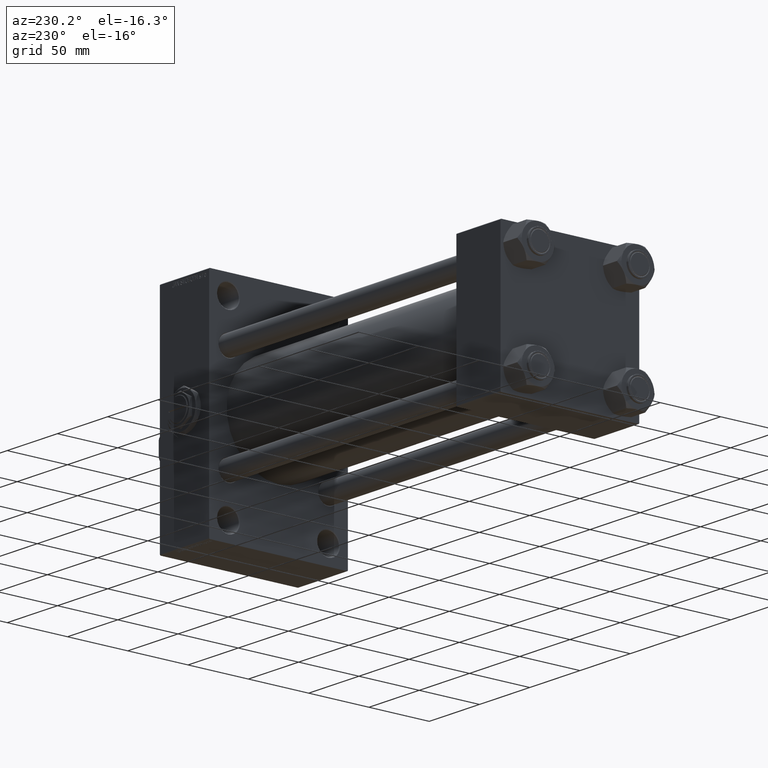
[diagram: clean part render]
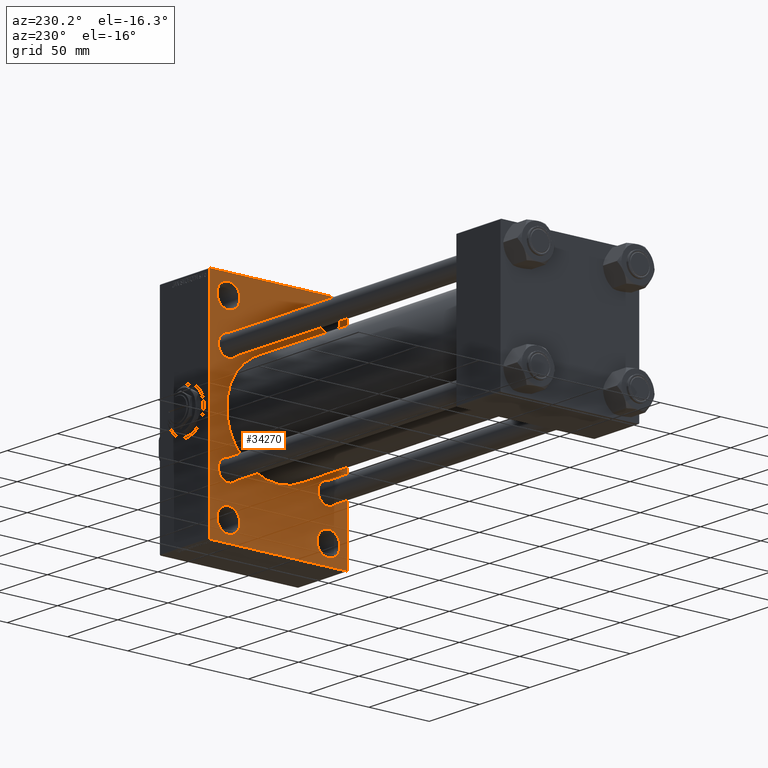
[diagram: same view with one face highlighted and labeled with its STEP entity id]
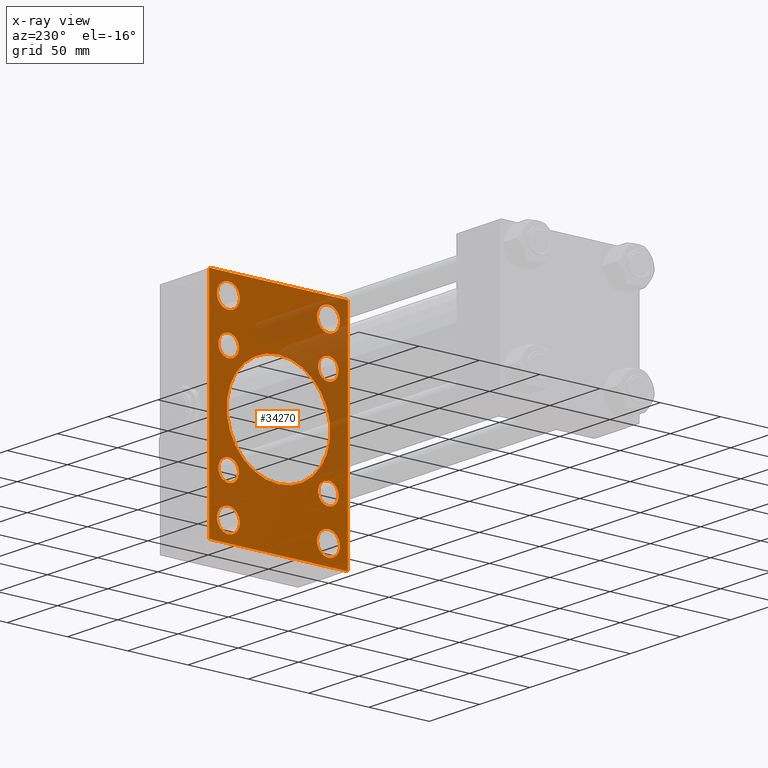
[diagram: x-ray of the same camera — body ghosted, the highlighted face saturated]
A machine part, auxiliary view. The second image highlights one B-rep face of the part: STEP entity #34270.
The next image is the same camera in x-ray: the body ghosted, the highlighted face saturated — about 26% of this face is hidden behind the body in this view.
In plain terms, the highlighted planar face has unit normal (-1, 0, 0).
Its self-contained STEP definition (entity closure, byte-faithful):
#202 = LINE ( 'NONE', #27321, #33629 ) ;
#299 = DIRECTION ( 'NONE',  ( 1.000000000000000000, -0.000000000000000000, 0.000000000000000000 ) ) ;
#974 = CARTESIAN_POINT ( 'NONE',  ( 290.0000000000000000, -2.602085213965210642E-15, 0.000000000000000000 ) ) ;
#1216 = DIRECTION ( 'NONE',  ( 0.000000000000000000, 0.000000000000000000, -1.000000000000000000 ) ) ;
#1561 = ORIENTED_EDGE ( 'NONE', *, *, #21786, .T. ) ;
#1756 = CARTESIAN_POINT ( 'NONE',  ( 290.0000000000000000, 41.50000000000000711, 74.50000000000001421 ) ) ;
#1786 = VERTEX_POINT ( 'NONE', #9973 ) ;
#2034 = LINE ( 'NONE', #6009, #39880 ) ;
#2293 = CIRCLE ( 'NONE', #30932, 9.500000000000008882 ) ;
#2817 = CARTESIAN_POINT ( 'NONE',  ( 290.0000000000000000, -41.49999999999999289, 74.50000000000001421 ) ) ;
#2991 = AXIS2_PLACEMENT_3D ( 'NONE', #17038, #9818, #6324 ) ;
#3307 = FACE_BOUND ( 'NONE', #22557, .T. ) ;
#3384 = DIRECTION ( 'NONE',  ( 1.000000000000000000, -0.000000000000000000, 0.000000000000000000 ) ) ;
#3554 = FACE_BOUND ( 'NONE', #13147, .T. ) ;
#3786 = CARTESIAN_POINT ( 'NONE',  ( 290.0000000000000000, -41.34999999999998721, -32.85000000000000142 ) ) ;
#4050 = FACE_BOUND ( 'NONE', #42019, .T. ) ;
#4152 = AXIS2_PLACEMENT_3D ( 'NONE', #4663, #31030, #8646 ) ;
#4437 = ORIENTED_EDGE ( 'NONE', *, *, #17966, .T. ) ;
#4663 = CARTESIAN_POINT ( 'NONE',  ( 290.0000000000000000, -41.34999999999998721, -41.35000000000000853 ) ) ;
#4712 = CARTESIAN_POINT ( 'NONE',  ( 290.0000000000000000, 41.34999999999999432, 41.35000000000000142 ) ) ;
#5206 = CARTESIAN_POINT ( 'NONE',  ( 290.0000000000000000, -41.34999999999998721, -49.85000000000002274 ) ) ;
#5350 = CARTESIAN_POINT ( 'NONE',  ( 290.0000000000000000, 41.50000000000000711, 65.00000000000000000 ) ) ;
#5513 = DIRECTION ( 'NONE',  ( 1.000000000000000000, 0.000000000000000000, 0.000000000000000000 ) ) ;
#5555 = CARTESIAN_POINT ( 'NONE',  ( 290.0000000000000000, 57.49999999999997868, -89.49999999999995737 ) ) ;
#5763 = VERTEX_POINT ( 'NONE', #16130 ) ;
#5985 = CARTESIAN_POINT ( 'NONE',  ( 290.0000000000000000, 57.49999999999997868, -90.00000000000000000 ) ) ;
#6009 = CARTESIAN_POINT ( 'NONE',  ( 290.0000000000000000, -73.49999999999603517, -73.50000000000625278 ) ) ;
#6194 = CARTESIAN_POINT ( 'NONE',  ( 290.0000000000000000, 2.663896022368408223E-15, -43.00000000000000000 ) ) ;
#6206 = AXIS2_PLACEMENT_3D ( 'NONE', #46019, #34073, #8948 ) ;
#6324 = DIRECTION ( 'NONE',  ( 0.000000000000000000, 0.000000000000000000, 1.000000000000000000 ) ) ;
#6518 = CIRCLE ( 'NONE', #48626, 8.500000000000007105 ) ;
#6719 = AXIS2_PLACEMENT_3D ( 'NONE', #38610, #299, #8506 ) ;
#6926 = EDGE_CURVE ( 'NONE', #39286, #34109, #18152, .T. ) ;
#7289 = LINE ( 'NONE', #45340, #36205 ) ;
#7332 = CARTESIAN_POINT ( 'NONE',  ( 290.0000000000000000, 57.00000000000003553, -90.00000000000000000 ) ) ;
#7707 = EDGE_CURVE ( 'NONE', #12165, #27909, #40309, .T. ) ;
#8045 = EDGE_CURVE ( 'NONE', #36710, #25127, #18970, .T. ) ;
#8495 = VERTEX_POINT ( 'NONE', #33306 ) ;
#8497 = DIRECTION ( 'NONE',  ( 1.000000000000000000, -0.000000000000000000, 0.000000000000000000 ) ) ;
#8506 = DIRECTION ( 'NONE',  ( 0.000000000000000000, 0.000000000000000000, 1.000000000000000000 ) ) ;
#8646 = DIRECTION ( 'NONE',  ( 0.000000000000000000, 0.000000000000000000, 1.000000000000000000 ) ) ;
#8735 = EDGE_CURVE ( 'NONE', #34910, #5763, #21388, .T. ) ;
#8855 = AXIS2_PLACEMENT_3D ( 'NONE', #29019, #44182, #47669 ) ;
#8948 = DIRECTION ( 'NONE',  ( 0.000000000000000000, 0.000000000000000000, 1.000000000000000000 ) ) ;
#9175 = DIRECTION ( 'NONE',  ( 0.000000000000000000, 0.000000000000000000, 1.000000000000000000 ) ) ;
#9478 = AXIS2_PLACEMENT_3D ( 'NONE', #4712, #15894, #9175 ) ;
#9612 = AXIS2_PLACEMENT_3D ( 'NONE', #22551, #12303, #26291 ) ;
#9818 = DIRECTION ( 'NONE',  ( 1.000000000000000000, -0.000000000000000000, 0.000000000000000000 ) ) ;
#9904 = EDGE_LOOP ( 'NONE', ( #33392, #47428 ) ) ;
#9973 = CARTESIAN_POINT ( 'NONE',  ( 290.0000000000000000, -41.49999999999999289, 84.00000000000001421 ) ) ;
#10171 = CIRCLE ( 'NONE', #6206, 8.500000000000007105 ) ;
#10765 = FACE_BOUND ( 'NONE', #35300, .T. ) ;
#11266 = ORIENTED_EDGE ( 'NONE', *, *, #18801, .T. ) ;
#11512 = FACE_BOUND ( 'NONE', #40760, .T. ) ;
#11807 = CARTESIAN_POINT ( 'NONE',  ( 290.0000000000000000, -2.602085213965210642E-15, 43.00000000000000000 ) ) ;
#11849 = CARTESIAN_POINT ( 'NONE',  ( 290.0000000000000000, 41.50000000000000711, -74.50000000000000000 ) ) ;
#12025 = ORIENTED_EDGE ( 'NONE', *, *, #48915, .T. ) ;
#12115 = VERTEX_POINT ( 'NONE', #48872 ) ;
#12165 = VERTEX_POINT ( 'NONE', #7332 ) ;
#12303 = DIRECTION ( 'NONE',  ( 1.000000000000000000, -0.000000000000000000, 0.000000000000000000 ) ) ;
#12712 = VECTOR ( 'NONE', #37934, 1000.000000000000000 ) ;
#12819 = DIRECTION ( 'NONE',  ( 0.000000000000000000, 0.000000000000000000, 1.000000000000000000 ) ) ;
#12931 = EDGE_CURVE ( 'NONE', #46360, #8495, #41672, .T. ) ;
#13008 = ORIENTED_EDGE ( 'NONE', *, *, #30102, .T. ) ;
#13147 = EDGE_LOOP ( 'NONE', ( #43810, #39597 ) ) ;
#13230 = ORIENTED_EDGE ( 'NONE', *, *, #6926, .T. ) ;
#13618 = CIRCLE ( 'NONE', #41418, 9.500000000000008882 ) ;
#13679 = EDGE_CURVE ( 'NONE', #46095, #19829, #17549, .T. ) ;
#13999 = DIRECTION ( 'NONE',  ( 1.000000000000000000, -0.000000000000000000, 0.000000000000000000 ) ) ;
#14728 = ORIENTED_EDGE ( 'NONE', *, *, #23605, .T. ) ;
#14975 = PLANE ( 'NONE',  #44260 ) ;
#15103 = DIRECTION ( 'NONE',  ( 0.000000000000000000, 0.7071067811865867636, -0.7071067811865081598 ) ) ;
#15388 = CIRCLE ( 'NONE', #43214, 9.500000000000008882 ) ;
#15414 = AXIS2_PLACEMENT_3D ( 'NONE', #974, #35283, #1216 ) ;
#15581 = EDGE_CURVE ( 'NONE', #47834, #36358, #29454, .T. ) ;
#15894 = DIRECTION ( 'NONE',  ( 1.000000000000000000, -0.000000000000000000, 0.000000000000000000 ) ) ;
#16130 = CARTESIAN_POINT ( 'NONE',  ( 290.0000000000000000, -41.34999999999998721, 32.85000000000000142 ) ) ;
#16284 = CIRCLE ( 'NONE', #33772, 9.500000000000008882 ) ;
#16538 = EDGE_CURVE ( 'NONE', #46081, #41948, #23127, .T. ) ;
#16930 = DIRECTION ( 'NONE',  ( 0.000000000000000000, 0.000000000000000000, 1.000000000000000000 ) ) ;
#16950 = CIRCLE ( 'NONE', #28857, 43.00000000000000000 ) ;
#17038 = CARTESIAN_POINT ( 'NONE',  ( 290.0000000000000000, -41.34999999999998721, 41.35000000000000853 ) ) ;
#17106 = DIRECTION ( 'NONE',  ( 1.000000000000000000, -0.000000000000000000, 0.000000000000000000 ) ) ;
#17112 = DIRECTION ( 'NONE',  ( -0.000000000000000000, -0.7071067811865181518, -0.7071067811865769936 ) ) ;
#17442 = ORIENTED_EDGE ( 'NONE', *, *, #38261, .T. ) ;
#17549 = CIRCLE ( 'NONE', #8855, 9.500000000000008882 ) ;
#17622 = VERTEX_POINT ( 'NONE', #48338 ) ;
#17678 = DIRECTION ( 'NONE',  ( 0.000000000000000000, -1.000000000000000000, -1.206764157201257291E-16 ) ) ;
#17924 = CARTESIAN_POINT ( 'NONE',  ( 290.0000000000000000, 57.49999999999997158, 89.99999999999998579 ) ) ;
#17966 = EDGE_CURVE ( 'NONE', #27909, #42219, #2034, .T. ) ;
#18152 = CIRCLE ( 'NONE', #37195, 9.500000000000008882 ) ;
#18228 = ORIENTED_EDGE ( 'NONE', *, *, #7707, .T. ) ;
#18475 = FACE_OUTER_BOUND ( 'NONE', #26564, .T. ) ;
#18607 = CIRCLE ( 'NONE', #6719, 9.500000000000008882 ) ;
#18670 = CARTESIAN_POINT ( 'NONE',  ( 290.0000000000000000, 41.50000000000000711, 84.00000000000001421 ) ) ;
#18801 = EDGE_CURVE ( 'NONE', #1786, #17622, #30343, .T. ) ;
#18925 = EDGE_CURVE ( 'NONE', #41948, #46081, #6518, .T. ) ;
#18970 = CIRCLE ( 'NONE', #9478, 8.500000000000007105 ) ;
#19209 = DIRECTION ( 'NONE',  ( -0.000000000000000000, 0.000000000000000000, 1.000000000000000000 ) ) ;
#19344 = DIRECTION ( 'NONE',  ( 1.000000000000000000, -0.000000000000000000, 0.000000000000000000 ) ) ;
#19829 = VERTEX_POINT ( 'NONE', #28594 ) ;
#20515 = VERTEX_POINT ( 'NONE', #31614 ) ;
#21388 = CIRCLE ( 'NONE', #36489, 8.500000000000007105 ) ;
#21485 = DIRECTION ( 'NONE',  ( 0.000000000000000000, 0.000000000000000000, 1.000000000000000000 ) ) ;
#21777 = CARTESIAN_POINT ( 'NONE',  ( 290.0000000000000000, -73.50000000000278533, 73.49999999999565148 ) ) ;
#21786 = EDGE_CURVE ( 'NONE', #44451, #23008, #16950, .T. ) ;
#22136 = LINE ( 'NONE', #17924, #26796 ) ;
#22295 = EDGE_CURVE ( 'NONE', #28209, #49163, #202, .T. ) ;
#22551 = CARTESIAN_POINT ( 'NONE',  ( 290.0000000000000000, 41.34999999999999432, -41.35000000000000142 ) ) ;
#22557 = EDGE_LOOP ( 'NONE', ( #12025, #38636 ) ) ;
#23008 = VERTEX_POINT ( 'NONE', #6194 ) ;
#23127 = CIRCLE ( 'NONE', #9612, 8.500000000000007105 ) ;
#23605 = EDGE_CURVE ( 'NONE', #20515, #12115, #15388, .T. ) ;
#23617 = EDGE_LOOP ( 'NONE', ( #47452, #17442 ) ) ;
#23843 = ORIENTED_EDGE ( 'NONE', *, *, #46371, .T. ) ;
#24079 = EDGE_CURVE ( 'NONE', #23008, #44451, #46442, .T. ) ;
#24274 = CARTESIAN_POINT ( 'NONE',  ( 290.0000000000000000, 41.34999999999999432, -41.35000000000000142 ) ) ;
#24825 = DIRECTION ( 'NONE',  ( 0.000000000000000000, 0.000000000000000000, 1.000000000000000000 ) ) ;
#25127 = VERTEX_POINT ( 'NONE', #27116 ) ;
#26208 = CARTESIAN_POINT ( 'NONE',  ( 290.0000000000000000, -57.50000000000002132, -89.50000000000002842 ) ) ;
#26291 = DIRECTION ( 'NONE',  ( 0.000000000000000000, 0.000000000000000000, 1.000000000000000000 ) ) ;
#26564 = EDGE_LOOP ( 'NONE', ( #18228, #4437, #31058, #46431, #39396, #34285, #45593, #35802 ) ) ;
#26796 = VECTOR ( 'NONE', #17678, 1000.000000000000000 ) ;
#27026 = CARTESIAN_POINT ( 'NONE',  ( 290.0000000000000000, 41.34999999999999432, -32.84999999999999432 ) ) ;
#27116 = CARTESIAN_POINT ( 'NONE',  ( 290.0000000000000000, 41.34999999999999432, 32.84999999999999432 ) ) ;
#27321 = CARTESIAN_POINT ( 'NONE',  ( 290.0000000000000000, 73.49999999999678835, 73.50000000000494538 ) ) ;
#27620 = CARTESIAN_POINT ( 'NONE',  ( 290.0000000000000000, -41.49999999999999289, -64.99999999999997158 ) ) ;
#27909 = VERTEX_POINT ( 'NONE', #33363 ) ;
#28209 = VERTEX_POINT ( 'NONE', #28859 ) ;
#28262 = CARTESIAN_POINT ( 'NONE',  ( 290.0000000000000000, -41.34999999999998721, -41.35000000000000853 ) ) ;
#28560 = LINE ( 'NONE', #42769, #37718 ) ;
#28594 = CARTESIAN_POINT ( 'NONE',  ( 290.0000000000000000, -41.49999999999999289, -83.99999999999998579 ) ) ;
#28821 = EDGE_CURVE ( 'NONE', #19829, #46095, #18607, .T. ) ;
#28857 = AXIS2_PLACEMENT_3D ( 'NONE', #40086, #5513, #35618 ) ;
#28859 = CARTESIAN_POINT ( 'NONE',  ( 290.0000000000000000, 56.99999999999992184, 89.99999999999998579 ) ) ;
#29019 = CARTESIAN_POINT ( 'NONE',  ( 290.0000000000000000, -41.49999999999999289, -74.49999999999998579 ) ) ;
#29152 = EDGE_CURVE ( 'NONE', #41111, #12165, #28560, .T. ) ;
#29182 = DIRECTION ( 'NONE',  ( 0.000000000000000000, 0.000000000000000000, 1.000000000000000000 ) ) ;
#29315 = VECTOR ( 'NONE', #32838, 1000.000000000000000 ) ;
#29454 = CIRCLE ( 'NONE', #39768, 8.500000000000007105 ) ;
#29804 = DIRECTION ( 'NONE',  ( 0.000000000000000000, 0.000000000000000000, -1.000000000000000000 ) ) ;
#30102 = EDGE_CURVE ( 'NONE', #17622, #1786, #16284, .T. ) ;
#30343 = CIRCLE ( 'NONE', #33529, 9.500000000000008882 ) ;
#30436 = ORIENTED_EDGE ( 'NONE', *, *, #41906, .T. ) ;
#30471 = CARTESIAN_POINT ( 'NONE',  ( 290.0000000000000000, 57.49999999999997158, 89.49999999999998579 ) ) ;
#30932 = AXIS2_PLACEMENT_3D ( 'NONE', #11849, #38975, #34985 ) ;
#31030 = DIRECTION ( 'NONE',  ( 1.000000000000000000, -0.000000000000000000, 0.000000000000000000 ) ) ;
#31053 = DIRECTION ( 'NONE',  ( 0.000000000000000000, 0.000000000000000000, 1.000000000000000000 ) ) ;
#31058 = ORIENTED_EDGE ( 'NONE', *, *, #31701, .F. ) ;
#31154 = EDGE_CURVE ( 'NONE', #49163, #41111, #7289, .T. ) ;
#31559 = ORIENTED_EDGE ( 'NONE', *, *, #18925, .T. ) ;
#31614 = CARTESIAN_POINT ( 'NONE',  ( 290.0000000000000000, 41.50000000000000711, -64.99999999999998579 ) ) ;
#31701 = EDGE_CURVE ( 'NONE', #46360, #42219, #37270, .T. ) ;
#31946 = CIRCLE ( 'NONE', #4152, 8.500000000000007105 ) ;
#32838 = DIRECTION ( 'NONE',  ( 0.000000000000000000, -1.000000000000000000, -1.206764157201257045E-16 ) ) ;
#32860 = EDGE_LOOP ( 'NONE', ( #1561, #36617 ) ) ;
#33306 = CARTESIAN_POINT ( 'NONE',  ( 290.0000000000000000, -57.00000000000007105, 89.99999999999997158 ) ) ;
#33363 = CARTESIAN_POINT ( 'NONE',  ( 290.0000000000000000, -57.00000000000002132, -90.00000000000001421 ) ) ;
#33392 = ORIENTED_EDGE ( 'NONE', *, *, #13679, .T. ) ;
#33529 = AXIS2_PLACEMENT_3D ( 'NONE', #37454, #3384, #42684 ) ;
#33629 = VECTOR ( 'NONE', #15103, 1000.000000000000000 ) ;
#33649 = DIRECTION ( 'NONE',  ( -1.000000000000000000, 0.000000000000000000, -0.000000000000000000 ) ) ;
#33684 = DIRECTION ( 'NONE',  ( 1.000000000000000000, -0.000000000000000000, 0.000000000000000000 ) ) ;
#33772 = AXIS2_PLACEMENT_3D ( 'NONE', #2817, #13999, #29182 ) ;
#33892 = FACE_BOUND ( 'NONE', #9904, .T. ) ;
#34073 = DIRECTION ( 'NONE',  ( 1.000000000000000000, -0.000000000000000000, 0.000000000000000000 ) ) ;
#34109 = VERTEX_POINT ( 'NONE', #5350 ) ;
#34270 = ADVANCED_FACE ( 'NONE', ( #11512, #33892, #4050, #49065, #37625, #3554, #10765, #3307, #45585, #18475 ), #14975, .T. ) ;
#34285 = ORIENTED_EDGE ( 'NONE', *, *, #22295, .T. ) ;
#34910 = VERTEX_POINT ( 'NONE', #38205 ) ;
#34985 = DIRECTION ( 'NONE',  ( 0.000000000000000000, 0.000000000000000000, 1.000000000000000000 ) ) ;
#35283 = DIRECTION ( 'NONE',  ( 1.000000000000000000, 0.000000000000000000, 0.000000000000000000 ) ) ;
#35300 = EDGE_LOOP ( 'NONE', ( #31559, #37841 ) ) ;
#35618 = DIRECTION ( 'NONE',  ( 0.000000000000000000, 0.000000000000000000, -1.000000000000000000 ) ) ;
#35802 = ORIENTED_EDGE ( 'NONE', *, *, #29152, .T. ) ;
#36205 = VECTOR ( 'NONE', #49072, 1000.000000000000000 ) ;
#36358 = VERTEX_POINT ( 'NONE', #3786 ) ;
#36489 = AXIS2_PLACEMENT_3D ( 'NONE', #40487, #17106, #24825 ) ;
#36617 = ORIENTED_EDGE ( 'NONE', *, *, #24079, .T. ) ;
#36630 = EDGE_CURVE ( 'NONE', #25127, #36710, #10171, .T. ) ;
#36710 = VERTEX_POINT ( 'NONE', #45519 ) ;
#37195 = AXIS2_PLACEMENT_3D ( 'NONE', #1756, #8497, #16930 ) ;
#37249 = EDGE_CURVE ( 'NONE', #28209, #8495, #22136, .T. ) ;
#37270 = LINE ( 'NONE', #44974, #42602 ) ;
#37454 = CARTESIAN_POINT ( 'NONE',  ( 290.0000000000000000, -41.49999999999999289, 74.50000000000001421 ) ) ;
#37514 = CARTESIAN_POINT ( 'NONE',  ( 290.0000000000000000, -57.50000000000002132, 89.49999999999997158 ) ) ;
#37625 = FACE_BOUND ( 'NONE', #23617, .T. ) ;
#37718 = VECTOR ( 'NONE', #17112, 1000.000000000000000 ) ;
#37841 = ORIENTED_EDGE ( 'NONE', *, *, #16538, .T. ) ;
#37934 = DIRECTION ( 'NONE',  ( -0.000000000000000000, 0.7071067811865131558, 0.7071067811865818786 ) ) ;
#38205 = CARTESIAN_POINT ( 'NONE',  ( 290.0000000000000000, -41.34999999999998721, 49.85000000000002274 ) ) ;
#38261 = EDGE_CURVE ( 'NONE', #5763, #34910, #49046, .T. ) ;
#38517 = CARTESIAN_POINT ( 'NONE',  ( 290.0000000000000000, 41.50000000000000711, 74.50000000000001421 ) ) ;
#38610 = CARTESIAN_POINT ( 'NONE',  ( 290.0000000000000000, -41.49999999999999289, -74.49999999999998579 ) ) ;
#38636 = ORIENTED_EDGE ( 'NONE', *, *, #15581, .T. ) ;
#38795 = EDGE_LOOP ( 'NONE', ( #13230, #23843 ) ) ;
#38975 = DIRECTION ( 'NONE',  ( 1.000000000000000000, -0.000000000000000000, 0.000000000000000000 ) ) ;
#39286 = VERTEX_POINT ( 'NONE', #18670 ) ;
#39396 = ORIENTED_EDGE ( 'NONE', *, *, #37249, .F. ) ;
#39597 = ORIENTED_EDGE ( 'NONE', *, *, #36630, .T. ) ;
#39768 = AXIS2_PLACEMENT_3D ( 'NONE', #28262, #33684, #48621 ) ;
#39880 = VECTOR ( 'NONE', #47542, 1000.000000000000114 ) ;
#40086 = CARTESIAN_POINT ( 'NONE',  ( 290.0000000000000000, -2.602085213965210642E-15, 0.000000000000000000 ) ) ;
#40309 = LINE ( 'NONE', #5985, #29315 ) ;
#40487 = CARTESIAN_POINT ( 'NONE',  ( 290.0000000000000000, -41.34999999999998721, 41.35000000000000853 ) ) ;
#40760 = EDGE_LOOP ( 'NONE', ( #11266, #13008 ) ) ;
#41111 = VERTEX_POINT ( 'NONE', #5555 ) ;
#41138 = CARTESIAN_POINT ( 'NONE',  ( 290.0000000000000000, 41.50000000000000711, -74.50000000000000000 ) ) ;
#41418 = AXIS2_PLACEMENT_3D ( 'NONE', #38517, #19344, #31053 ) ;
#41672 = LINE ( 'NONE', #21777, #12712 ) ;
#41906 = EDGE_CURVE ( 'NONE', #12115, #20515, #2293, .T. ) ;
#41948 = VERTEX_POINT ( 'NONE', #27026 ) ;
#42019 = EDGE_LOOP ( 'NONE', ( #14728, #30436 ) ) ;
#42047 = CARTESIAN_POINT ( 'NONE',  ( 290.0000000000000000, 41.34999999999999432, -49.85000000000001563 ) ) ;
#42219 = VERTEX_POINT ( 'NONE', #26208 ) ;
#42602 = VECTOR ( 'NONE', #29804, 1000.000000000000000 ) ;
#42684 = DIRECTION ( 'NONE',  ( 0.000000000000000000, 0.000000000000000000, 1.000000000000000000 ) ) ;
#42769 = CARTESIAN_POINT ( 'NONE',  ( 290.0000000000000000, 73.50000000000240163, -73.49999999999627676 ) ) ;
#43214 = AXIS2_PLACEMENT_3D ( 'NONE', #41138, #47874, #21485 ) ;
#43810 = ORIENTED_EDGE ( 'NONE', *, *, #8045, .T. ) ;
#44182 = DIRECTION ( 'NONE',  ( 1.000000000000000000, -0.000000000000000000, 0.000000000000000000 ) ) ;
#44260 = AXIS2_PLACEMENT_3D ( 'NONE', #44603, #33649, #19209 ) ;
#44451 = VERTEX_POINT ( 'NONE', #11807 ) ;
#44603 = CARTESIAN_POINT ( 'NONE',  ( 290.0000000000000000, 0.000000000000000000, 0.000000000000000000 ) ) ;
#44974 = CARTESIAN_POINT ( 'NONE',  ( 290.0000000000000000, -57.50000000000002132, 89.99999999999997158 ) ) ;
#45340 = CARTESIAN_POINT ( 'NONE',  ( 290.0000000000000000, 57.49999999999997158, 89.99999999999998579 ) ) ;
#45519 = CARTESIAN_POINT ( 'NONE',  ( 290.0000000000000000, 41.34999999999999432, 49.85000000000001563 ) ) ;
#45585 = FACE_BOUND ( 'NONE', #32860, .T. ) ;
#45593 = ORIENTED_EDGE ( 'NONE', *, *, #31154, .T. ) ;
#46019 = CARTESIAN_POINT ( 'NONE',  ( 290.0000000000000000, 41.34999999999999432, 41.35000000000000142 ) ) ;
#46081 = VERTEX_POINT ( 'NONE', #42047 ) ;
#46095 = VERTEX_POINT ( 'NONE', #27620 ) ;
#46360 = VERTEX_POINT ( 'NONE', #37514 ) ;
#46371 = EDGE_CURVE ( 'NONE', #34109, #39286, #13618, .T. ) ;
#46431 = ORIENTED_EDGE ( 'NONE', *, *, #12931, .T. ) ;
#46442 = CIRCLE ( 'NONE', #15414, 43.00000000000000000 ) ;
#46897 = DIRECTION ( 'NONE',  ( 1.000000000000000000, -0.000000000000000000, 0.000000000000000000 ) ) ;
#47428 = ORIENTED_EDGE ( 'NONE', *, *, #28821, .T. ) ;
#47452 = ORIENTED_EDGE ( 'NONE', *, *, #8735, .T. ) ;
#47542 = DIRECTION ( 'NONE',  ( 0.000000000000000000, -0.7071067811865965336, 0.7071067811864985009 ) ) ;
#47669 = DIRECTION ( 'NONE',  ( 0.000000000000000000, 0.000000000000000000, 1.000000000000000000 ) ) ;
#47834 = VERTEX_POINT ( 'NONE', #5206 ) ;
#47874 = DIRECTION ( 'NONE',  ( 1.000000000000000000, -0.000000000000000000, 0.000000000000000000 ) ) ;
#48338 = CARTESIAN_POINT ( 'NONE',  ( 290.0000000000000000, -41.49999999999999289, 65.00000000000000000 ) ) ;
#48621 = DIRECTION ( 'NONE',  ( 0.000000000000000000, 0.000000000000000000, 1.000000000000000000 ) ) ;
#48626 = AXIS2_PLACEMENT_3D ( 'NONE', #24274, #46897, #12819 ) ;
#48872 = CARTESIAN_POINT ( 'NONE',  ( 290.0000000000000000, 41.50000000000000711, -84.00000000000000000 ) ) ;
#48915 = EDGE_CURVE ( 'NONE', #36358, #47834, #31946, .T. ) ;
#49046 = CIRCLE ( 'NONE', #2991, 8.500000000000007105 ) ;
#49065 = FACE_BOUND ( 'NONE', #38795, .T. ) ;
#49072 = DIRECTION ( 'NONE',  ( 0.000000000000000000, 3.854941057726238467E-17, -1.000000000000000000 ) ) ;
#49163 = VERTEX_POINT ( 'NONE', #30471 ) ;